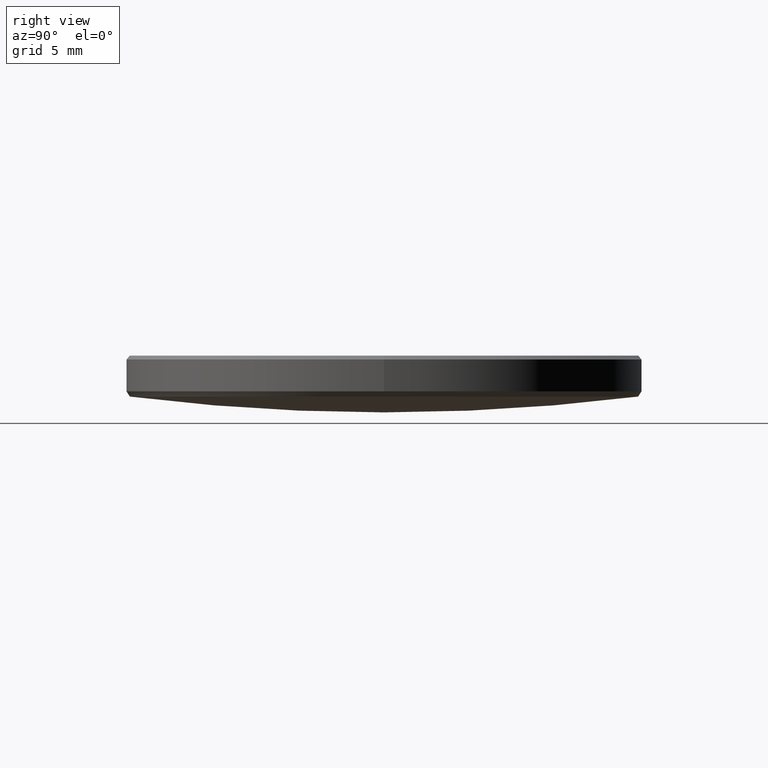
[diagram: clean part render]
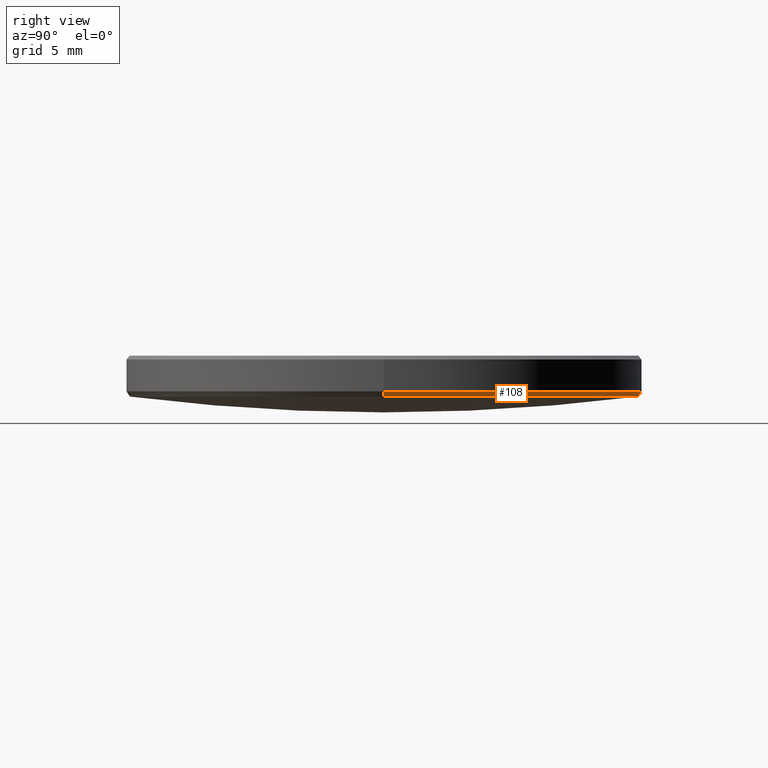
[diagram: same view with one face highlighted and labeled with its STEP entity id]
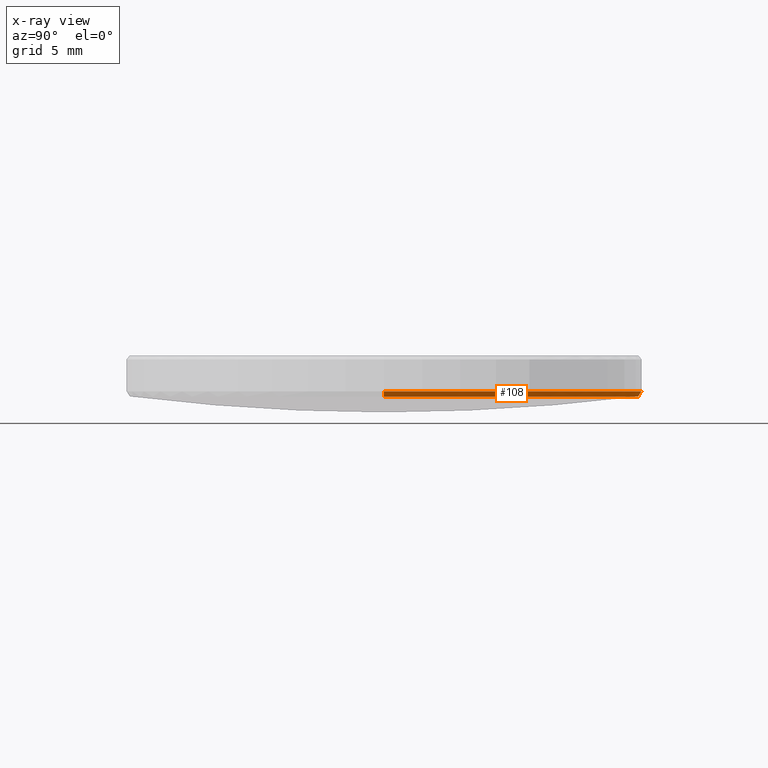
[diagram: x-ray of the same camera — body ghosted, the highlighted face saturated]
A machine part, right view. The second image highlights one B-rep face of the part: STEP entity #108.
The next image is the same camera in x-ray: the body ghosted, the highlighted face saturated — about 0% of this face is hidden behind the body in this view.
In plain terms, the highlighted conical surface has half-angle 37.768 deg.
Its self-contained STEP definition (entity closure, byte-faithful):
#2 = CIRCLE ( 'NONE', #8, 12.50176226215777930 ) ;
#5 = VERTEX_POINT ( 'NONE', #322 ) ;
#8 = AXIS2_PLACEMENT_3D ( 'NONE', #143, #242, #31 ) ;
#27 = VERTEX_POINT ( 'NONE', #42 ) ;
#30 = VERTEX_POINT ( 'NONE', #319 ) ;
#31 = DIRECTION ( 'NONE',  ( 1.000000000000000000, 0.000000000000000000, 0.000000000000000000 ) ) ;
#32 = EDGE_LOOP ( 'NONE', ( #187, #208, #118, #144, #243 ) ) ;
#36 = CARTESIAN_POINT ( 'NONE',  ( -12.69999999999999929, 1.555301434917138433E-15, 4.230902662384877999 ) ) ;
#41 = CONICAL_SURFACE ( 'NONE', #115, 12.69999999999999929, 0.6591836576304348494 ) ;
#42 = CARTESIAN_POINT ( 'NONE',  ( -12.50176226215777930, 1.543162874361204192E-15, 3.975045240485544529 ) ) ;
#43 = DIRECTION ( 'NONE',  ( -0.000000000000000000, -0.000000000000000000, 1.000000000000000000 ) ) ;
#72 = CIRCLE ( 'NONE', #292, 12.69999999999999929 ) ;
#77 = EDGE_CURVE ( 'NONE', #27, #191, #146, .T. ) ;
#87 = CARTESIAN_POINT ( 'NONE',  ( -12.69999999999999929, 0.000000000000000000, 4.230902662384877999 ) ) ;
#97 = EDGE_CURVE ( 'NONE', #5, #30, #106, .T. ) ;
#98 = CARTESIAN_POINT ( 'NONE',  ( 0.000000000000000000, 0.000000000000000000, 3.975045240485544529 ) ) ;
#106 = LINE ( 'NONE', #222, #204 ) ;
#108 = ADVANCED_FACE ( 'NONE', ( #304 ), #41, .T. ) ;
#110 = CARTESIAN_POINT ( 'NONE',  ( 0.000000000000000000, 12.50176226215772068, 3.975045240485544529 ) ) ;
#115 = AXIS2_PLACEMENT_3D ( 'NONE', #325, #43, #298 ) ;
#116 = DIRECTION ( 'NONE',  ( -0.000000000000000000, -0.000000000000000000, 1.000000000000000000 ) ) ;
#118 = ORIENTED_EDGE ( 'NONE', *, *, #280, .F. ) ;
#133 = EDGE_CURVE ( 'NONE', #27, #297, #262, .T. ) ;
#136 = CARTESIAN_POINT ( 'NONE',  ( 0.000000000000000000, 0.000000000000000000, 4.230902662384877999 ) ) ;
#142 = DIRECTION ( 'NONE',  ( -0.6124717436197836262, 7.500615603921663668E-17, 0.7904924814742655403 ) ) ;
#143 = CARTESIAN_POINT ( 'NONE',  ( 0.000000000000000000, 0.000000000000000000, 3.975045240485544529 ) ) ;
#144 = ORIENTED_EDGE ( 'NONE', *, *, #97, .F. ) ;
#146 = LINE ( 'NONE', #36, #228 ) ;
#187 = ORIENTED_EDGE ( 'NONE', *, *, #133, .F. ) ;
#191 = VERTEX_POINT ( 'NONE', #87 ) ;
#204 = VECTOR ( 'NONE', #223, 1000.000000000000000 ) ;
#208 = ORIENTED_EDGE ( 'NONE', *, *, #77, .T. ) ;
#222 = CARTESIAN_POINT ( 'NONE',  ( 12.69999999999999929, 0.000000000000000000, 4.230902662384877999 ) ) ;
#223 = DIRECTION ( 'NONE',  ( 0.6124717436197836262, 0.000000000000000000, 0.7904924814742655403 ) ) ;
#226 = AXIS2_PLACEMENT_3D ( 'NONE', #98, #323, #326 ) ;
#228 = VECTOR ( 'NONE', #142, 1000.000000000000000 ) ;
#234 = DIRECTION ( 'NONE',  ( -1.000000000000000000, 0.000000000000000000, 0.000000000000000000 ) ) ;
#242 = DIRECTION ( 'NONE',  ( 0.000000000000000000, 0.000000000000000000, -1.000000000000000000 ) ) ;
#243 = ORIENTED_EDGE ( 'NONE', *, *, #291, .F. ) ;
#262 = CIRCLE ( 'NONE', #226, 12.50176226215777930 ) ;
#280 = EDGE_CURVE ( 'NONE', #30, #191, #72, .T. ) ;
#291 = EDGE_CURVE ( 'NONE', #297, #5, #2, .T. ) ;
#292 = AXIS2_PLACEMENT_3D ( 'NONE', #136, #116, #234 ) ;
#297 = VERTEX_POINT ( 'NONE', #110 ) ;
#298 = DIRECTION ( 'NONE',  ( 1.000000000000000000, 0.000000000000000000, 0.000000000000000000 ) ) ;
#304 = FACE_OUTER_BOUND ( 'NONE', #32, .T. ) ;
#319 = CARTESIAN_POINT ( 'NONE',  ( 12.69999999999999929, 1.555301434917138433E-15, 4.230902662384877999 ) ) ;
#322 = CARTESIAN_POINT ( 'NONE',  ( 12.50176226215777930, 0.000000000000000000, 3.975045240485544529 ) ) ;
#323 = DIRECTION ( 'NONE',  ( 0.000000000000000000, 0.000000000000000000, -1.000000000000000000 ) ) ;
#325 = CARTESIAN_POINT ( 'NONE',  ( 0.000000000000000000, 0.000000000000000000, 4.230902662384877999 ) ) ;
#326 = DIRECTION ( 'NONE',  ( 1.000000000000000000, 0.000000000000000000, 0.000000000000000000 ) ) ;